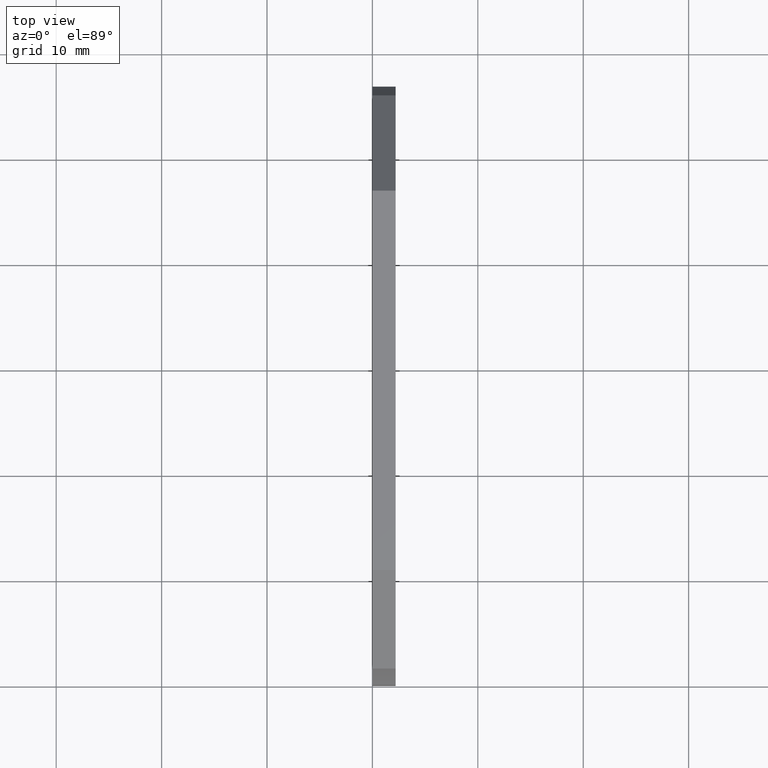
[diagram: clean part render]
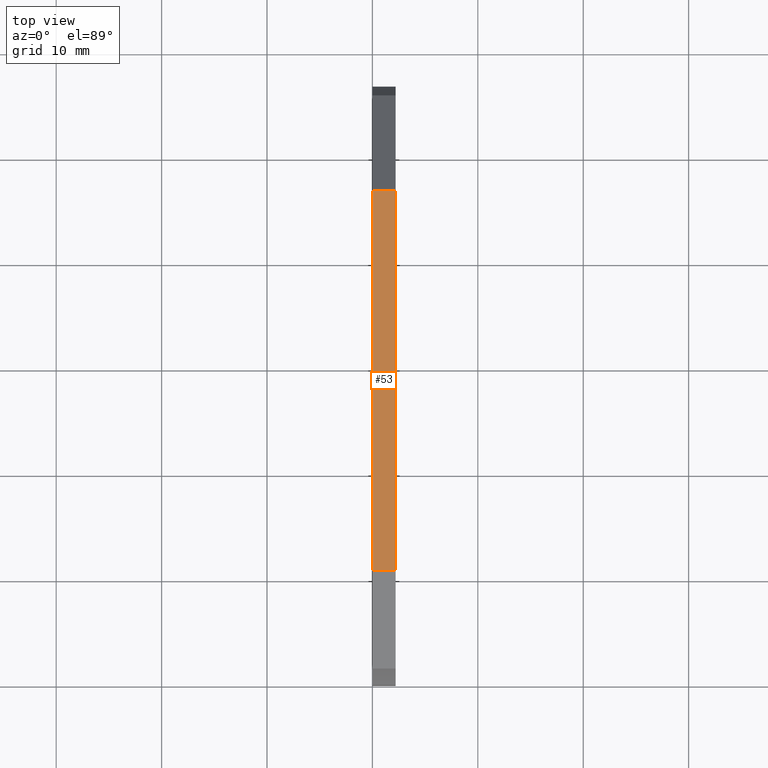
[diagram: same view with one face highlighted and labeled with its STEP entity id]
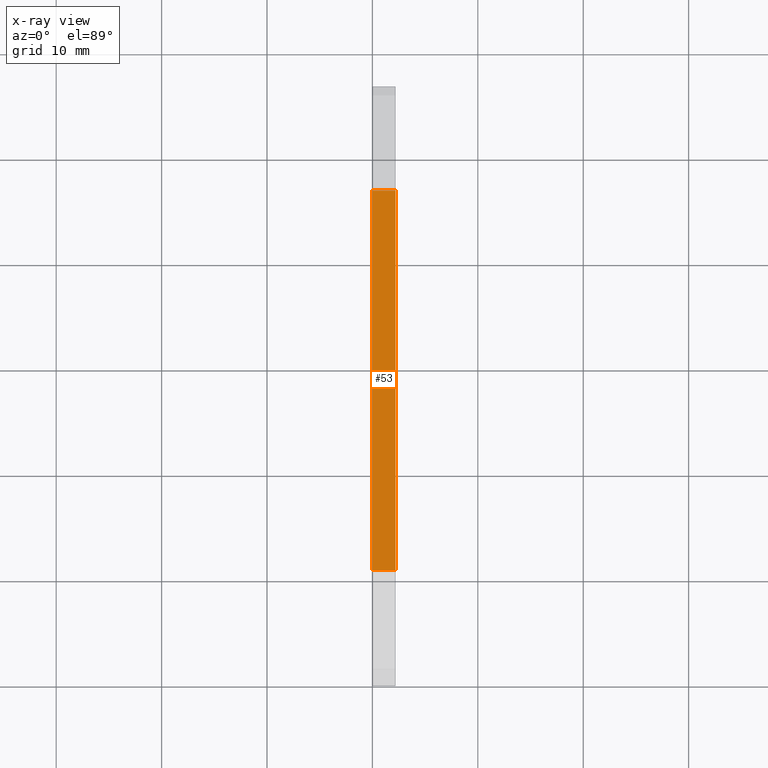
[diagram: x-ray of the same camera — body ghosted, the highlighted face saturated]
A machine part, top view. The second image highlights one B-rep face of the part: STEP entity #53.
The next image is the same camera in x-ray: the body ghosted, the highlighted face saturated — about 0% of this face is hidden behind the body in this view.
In plain terms, the highlighted planar face has unit normal (0, 0, -1).
Its self-contained STEP definition (entity closure, byte-faithful):
#53=ADVANCED_FACE('',(#112),#113,.F.);
#112=FACE_OUTER_BOUND('',#174,.T.);
#113=PLANE('',#175);
#174=EDGE_LOOP('',(#267,#268,#269,#270));
#175=AXIS2_PLACEMENT_3D('',#271,#272,#273);
#267=ORIENTED_EDGE('',*,*,#416,.T.);
#268=ORIENTED_EDGE('',*,*,#414,.T.);
#269=ORIENTED_EDGE('',*,*,#390,.T.);
#270=ORIENTED_EDGE('',*,*,#417,.F.);
#271=CARTESIAN_POINT('',(1.60000000000012,28.1999999999993,39.8000000000023));
#272=DIRECTION('',(0.0,1.05655906439348E-014,-1.0));
#273=DIRECTION('',(-1.0,6.27781712017518E-043,6.63288458292564E-057));
#390=EDGE_CURVE('',#464,#462,#465,.T.);
#414=EDGE_CURVE('',#502,#464,#504,.T.);
#416=EDGE_CURVE('',#506,#502,#507,.T.);
#417=EDGE_CURVE('',#506,#462,#508,.T.);
#462=VERTEX_POINT('',#565);
#464=VERTEX_POINT('',#568);
#465=LINE('',#569,#570);
#502=VERTEX_POINT('',#623);
#504=LINE('',#626,#627);
#506=VERTEX_POINT('',#629);
#507=LINE('',#630,#631);
#508=LINE('',#632,#633);
#565=CARTESIAN_POINT('',(-2.52435489670724E-029,10.4000000000012,39.8000000000021));
#568=CARTESIAN_POINT('',(-2.52435489670724E-029,46.3999999999974,39.8000000000025));
#569=CARTESIAN_POINT('',(3.73408332937061E-014,-5.92968082605144,39.8000000000019));
#570=VECTOR('',#700,1.0);
#623=CARTESIAN_POINT('',(2.19999999999996,46.3999999999974,39.8000000000025));
#626=CARTESIAN_POINT('',(-4.42295480701459E-014,46.3999999999974,39.8000000000025));
#627=VECTOR('',#724,1.0);
#629=CARTESIAN_POINT('',(2.19999999999996,10.4000000000012,39.8000000000021));
#630=CARTESIAN_POINT('',(2.19999999999996,41.9906041739486,39.8000000000024));
#631=VECTOR('',#725,1.0);
#632=CARTESIAN_POINT('',(-4.42295480701459E-014,10.4000000000012,39.8000000000021));
#633=VECTOR('',#726,1.0);
#700=DIRECTION('',(1.30957767131123E-044,-1.0,-1.05655906439344E-014));
#724=DIRECTION('',(-1.0,-1.05655906439322E-014,-1.12018248541384E-028));
#725=DIRECTION('',(1.70209354362047E-042,1.0,1.05655906439344E-014));
#726=DIRECTION('',(-1.0,1.05655906439322E-014,1.12018248541384E-028));